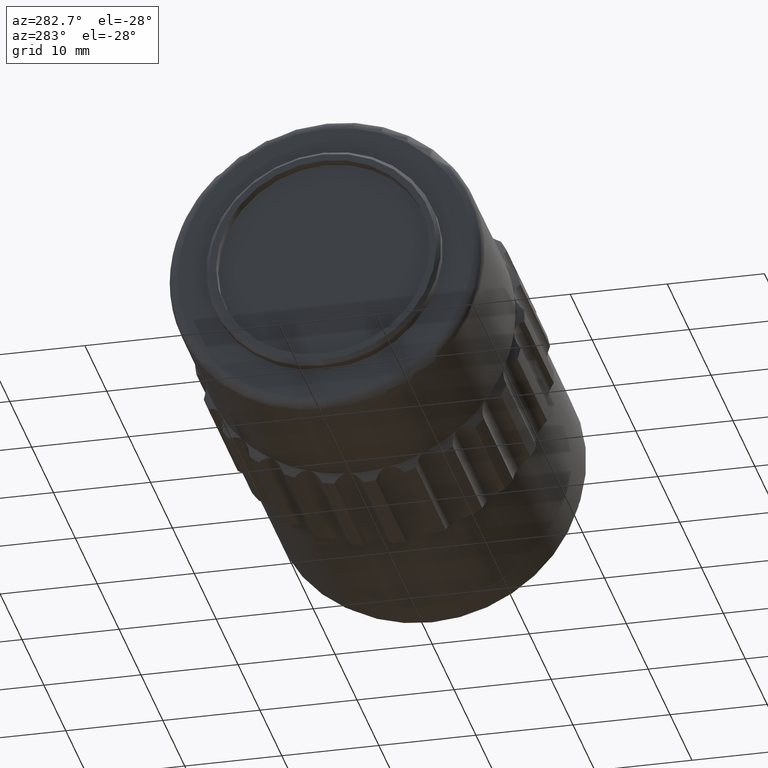
[diagram: clean part render]
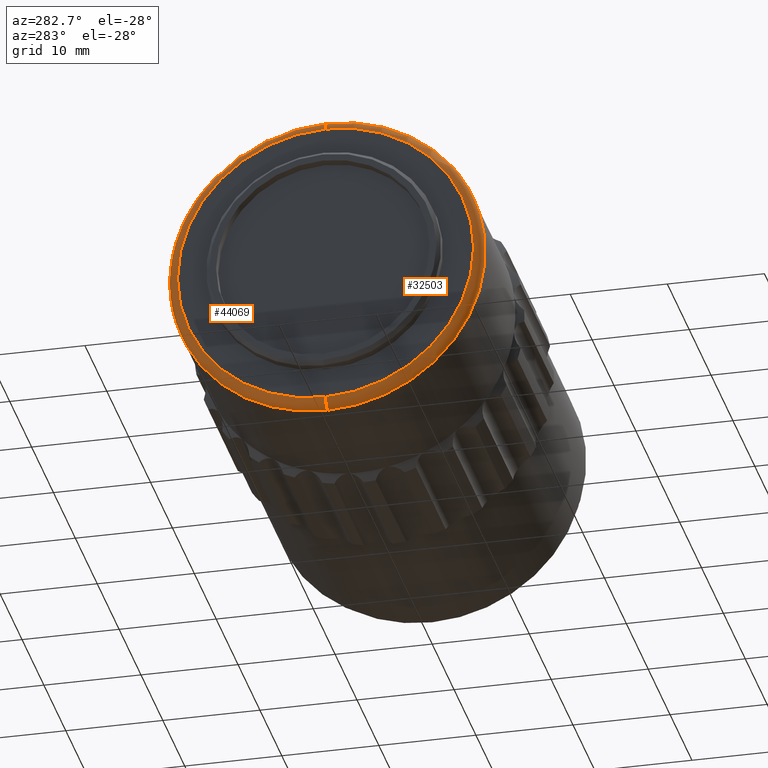
[diagram: same view with one multi-face feature highlighted, each face labeled with its STEP entity id]
A machine part, auxiliary view. The highlighted faces form ONE feature: a constant-radius fillet chain: 2 tangent blend faces with common blend radius 1 mm. The faces share edges in the B-rep.
Their STEP definitions:
[1] entity #44069 (Torus):
#85 = DIRECTION ( 'NONE',  ( 1.000000000000000000, 0.000000000000000000, 0.000000000000000000 ) ) ;
#990 = TOROIDAL_SURFACE ( 'NONE', #34537, 15.25000000000000000, 1.000000000000000000 ) ;
#1125 = CARTESIAN_POINT ( 'NONE',  ( 2.250000000000007994, 0.000000000000000000, 0.000000000000000000 ) ) ;
#2440 = ORIENTED_EDGE ( 'NONE', *, *, #25537, .F. ) ;
#2829 = CARTESIAN_POINT ( 'NONE',  ( 1.250000000000007994, 0.000000000000000000, -15.25000000000000000 ) ) ;
#3289 = FACE_OUTER_BOUND ( 'NONE', #34248, .T. ) ;
#3378 = DIRECTION ( 'NONE',  ( 0.000000000000000000, 1.000000000000000000, -1.224646799147353207E-16 ) ) ;
#3431 = CARTESIAN_POINT ( 'NONE',  ( 2.250000000000007994, 0.000000000000000000, -15.25000000000000000 ) ) ;
#3689 = CIRCLE ( 'NONE', #30681, 1.000000000000000888 ) ;
#7033 = CARTESIAN_POINT ( 'NONE',  ( 2.250000000000007994, 1.867586368699713770E-15, 15.25000000000000000 ) ) ;
#8801 = CIRCLE ( 'NONE', #32151, 15.25000000000000000 ) ;
#9605 = CARTESIAN_POINT ( 'NONE',  ( 1.250000000000007994, 1.928818708657081739E-15, 15.25000000000000000 ) ) ;
#14018 = CARTESIAN_POINT ( 'NONE',  ( 2.250000000000007994, 0.000000000000000000, 0.000000000000000000 ) ) ;
#14160 = DIRECTION ( 'NONE',  ( 0.000000000000000000, -1.000000000000000000, 0.000000000000000000 ) ) ;
#15381 = CARTESIAN_POINT ( 'NONE',  ( 2.250000000000007994, 0.000000000000000000, 16.25000000000000000 ) ) ;
#15940 = EDGE_CURVE ( 'NONE', #27663, #44962, #18198, .T. ) ;
#17065 = VERTEX_POINT ( 'NONE', #2829 ) ;
#18198 = CIRCLE ( 'NONE', #31331, 1.000000000000000888 ) ;
#18428 = DIRECTION ( 'NONE',  ( -1.000000000000000000, -0.000000000000000000, -0.000000000000000000 ) ) ;
#19409 = ORIENTED_EDGE ( 'NONE', *, *, #24142, .F. ) ;
#21395 = DIRECTION ( 'NONE',  ( 0.000000000000000000, 1.224646799147353454E-16, 1.000000000000000000 ) ) ;
#22716 = AXIS2_PLACEMENT_3D ( 'NONE', #1125, #31953, #36078 ) ;
#23223 = ORIENTED_EDGE ( 'NONE', *, *, #15940, .T. ) ;
#24142 = EDGE_CURVE ( 'NONE', #17065, #34193, #3689, .T. ) ;
#25537 = EDGE_CURVE ( 'NONE', #27663, #17065, #8801, .T. ) ;
#26898 = ORIENTED_EDGE ( 'NONE', *, *, #27862, .F. ) ;
#27663 = VERTEX_POINT ( 'NONE', #9605 ) ;
#27862 = EDGE_CURVE ( 'NONE', #34193, #44962, #32181, .T. ) ;
#30681 = AXIS2_PLACEMENT_3D ( 'NONE', #3431, #14160, #31738 ) ;
#31149 = DIRECTION ( 'NONE',  ( 0.000000000000000000, 0.000000000000000000, -1.000000000000000000 ) ) ;
#31331 = AXIS2_PLACEMENT_3D ( 'NONE', #7033, #3378, #21395 ) ;
#31738 = DIRECTION ( 'NONE',  ( 0.000000000000000000, 0.000000000000000000, -1.000000000000000000 ) ) ;
#31953 = DIRECTION ( 'NONE',  ( 1.000000000000000000, 0.000000000000000000, 0.000000000000000000 ) ) ;
#32151 = AXIS2_PLACEMENT_3D ( 'NONE', #36016, #18428, #39877 ) ;
#32181 = CIRCLE ( 'NONE', #22716, 16.25000000000000000 ) ;
#34193 = VERTEX_POINT ( 'NONE', #43339 ) ;
#34248 = EDGE_LOOP ( 'NONE', ( #2440, #23223, #26898, #19409 ) ) ;
#34537 = AXIS2_PLACEMENT_3D ( 'NONE', #14018, #85, #31149 ) ;
#36016 = CARTESIAN_POINT ( 'NONE',  ( 1.250000000000007994, 0.000000000000000000, 0.000000000000000000 ) ) ;
#36078 = DIRECTION ( 'NONE',  ( 0.000000000000000000, 0.000000000000000000, -1.000000000000000000 ) ) ;
#39877 = DIRECTION ( 'NONE',  ( 0.000000000000000000, 0.000000000000000000, -1.000000000000000000 ) ) ;
#43339 = CARTESIAN_POINT ( 'NONE',  ( 2.250000000000007994, 1.990051048614449313E-15, -16.25000000000000000 ) ) ;
#44069 = ADVANCED_FACE ( 'NONE', ( #3289 ), #990, .T. ) ;
#44962 = VERTEX_POINT ( 'NONE', #15381 ) ;
[2] entity #32503 (Torus):
#1724 = ORIENTED_EDGE ( 'NONE', *, *, #15940, .F. ) ;
#2829 = CARTESIAN_POINT ( 'NONE',  ( 1.250000000000007994, 0.000000000000000000, -15.25000000000000000 ) ) ;
#3378 = DIRECTION ( 'NONE',  ( 0.000000000000000000, 1.000000000000000000, -1.224646799147353207E-16 ) ) ;
#3431 = CARTESIAN_POINT ( 'NONE',  ( 2.250000000000007994, 0.000000000000000000, -15.25000000000000000 ) ) ;
#3689 = CIRCLE ( 'NONE', #30681, 1.000000000000000888 ) ;
#5977 = TOROIDAL_SURFACE ( 'NONE', #30013, 15.25000000000000000, 1.000000000000000000 ) ;
#7033 = CARTESIAN_POINT ( 'NONE',  ( 2.250000000000007994, 1.867586368699713770E-15, 15.25000000000000000 ) ) ;
#9605 = CARTESIAN_POINT ( 'NONE',  ( 1.250000000000007994, 1.928818708657081739E-15, 15.25000000000000000 ) ) ;
#9721 = DIRECTION ( 'NONE',  ( 0.000000000000000000, 0.000000000000000000, -1.000000000000000000 ) ) ;
#13375 = CARTESIAN_POINT ( 'NONE',  ( 2.250000000000007994, 0.000000000000000000, 0.000000000000000000 ) ) ;
#13480 = CARTESIAN_POINT ( 'NONE',  ( 1.250000000000007994, 0.000000000000000000, 0.000000000000000000 ) ) ;
#13918 = DIRECTION ( 'NONE',  ( 0.000000000000000000, 0.000000000000000000, -1.000000000000000000 ) ) ;
#14160 = DIRECTION ( 'NONE',  ( 0.000000000000000000, -1.000000000000000000, 0.000000000000000000 ) ) ;
#15381 = CARTESIAN_POINT ( 'NONE',  ( 2.250000000000007994, 0.000000000000000000, 16.25000000000000000 ) ) ;
#15940 = EDGE_CURVE ( 'NONE', #27663, #44962, #18198, .T. ) ;
#17065 = VERTEX_POINT ( 'NONE', #2829 ) ;
#18198 = CIRCLE ( 'NONE', #31331, 1.000000000000000888 ) ;
#18297 = AXIS2_PLACEMENT_3D ( 'NONE', #18439, #18657, #32364 ) ;
#18439 = CARTESIAN_POINT ( 'NONE',  ( 2.250000000000007994, 0.000000000000000000, 0.000000000000000000 ) ) ;
#18657 = DIRECTION ( 'NONE',  ( 1.000000000000000000, 0.000000000000000000, 0.000000000000000000 ) ) ;
#20086 = DIRECTION ( 'NONE',  ( -1.000000000000000000, -0.000000000000000000, -0.000000000000000000 ) ) ;
#20206 = FACE_OUTER_BOUND ( 'NONE', #29415, .T. ) ;
#21395 = DIRECTION ( 'NONE',  ( 0.000000000000000000, 1.224646799147353454E-16, 1.000000000000000000 ) ) ;
#24142 = EDGE_CURVE ( 'NONE', #17065, #34193, #3689, .T. ) ;
#24782 = EDGE_CURVE ( 'NONE', #44962, #34193, #37994, .T. ) ;
#26799 = ORIENTED_EDGE ( 'NONE', *, *, #24142, .T. ) ;
#26837 = DIRECTION ( 'NONE',  ( 1.000000000000000000, 0.000000000000000000, 0.000000000000000000 ) ) ;
#27273 = EDGE_CURVE ( 'NONE', #17065, #27663, #41634, .T. ) ;
#27663 = VERTEX_POINT ( 'NONE', #9605 ) ;
#29415 = EDGE_LOOP ( 'NONE', ( #1724, #42552, #26799, #45089 ) ) ;
#30013 = AXIS2_PLACEMENT_3D ( 'NONE', #13375, #26837, #9721 ) ;
#30681 = AXIS2_PLACEMENT_3D ( 'NONE', #3431, #14160, #31738 ) ;
#31331 = AXIS2_PLACEMENT_3D ( 'NONE', #7033, #3378, #21395 ) ;
#31738 = DIRECTION ( 'NONE',  ( 0.000000000000000000, 0.000000000000000000, -1.000000000000000000 ) ) ;
#32364 = DIRECTION ( 'NONE',  ( 0.000000000000000000, 0.000000000000000000, -1.000000000000000000 ) ) ;
#32503 = ADVANCED_FACE ( 'NONE', ( #20206 ), #5977, .T. ) ;
#34193 = VERTEX_POINT ( 'NONE', #43339 ) ;
#34363 = AXIS2_PLACEMENT_3D ( 'NONE', #13480, #20086, #13918 ) ;
#37994 = CIRCLE ( 'NONE', #18297, 16.25000000000000000 ) ;
#41634 = CIRCLE ( 'NONE', #34363, 15.25000000000000000 ) ;
#42552 = ORIENTED_EDGE ( 'NONE', *, *, #27273, .F. ) ;
#43339 = CARTESIAN_POINT ( 'NONE',  ( 2.250000000000007994, 1.990051048614449313E-15, -16.25000000000000000 ) ) ;
#44962 = VERTEX_POINT ( 'NONE', #15381 ) ;
#45089 = ORIENTED_EDGE ( 'NONE', *, *, #24782, .F. ) ;